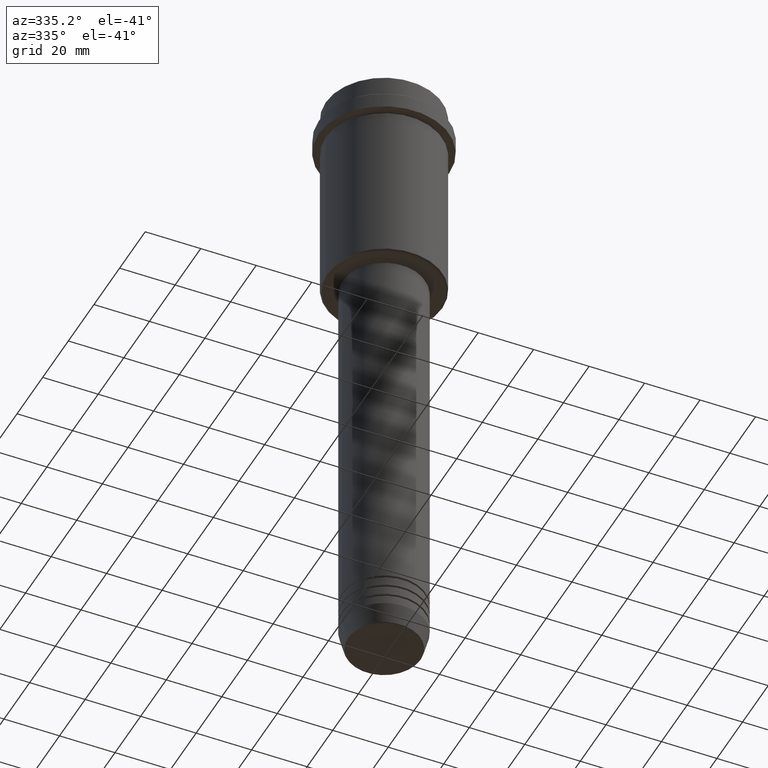
[diagram: clean part render]
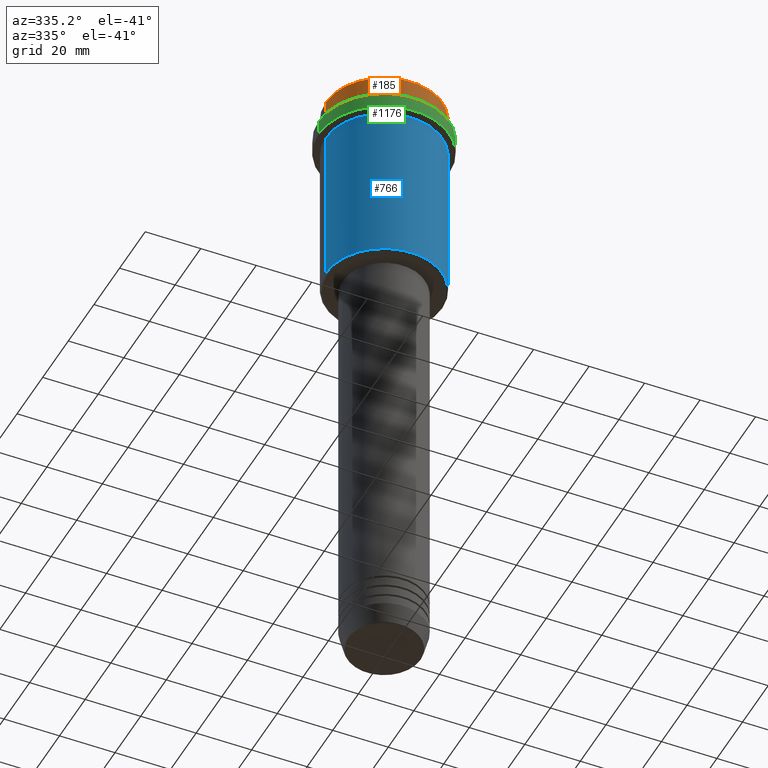
[diagram: same view with three faces highlighted in distinct colors, each labeled with its STEP entity id]
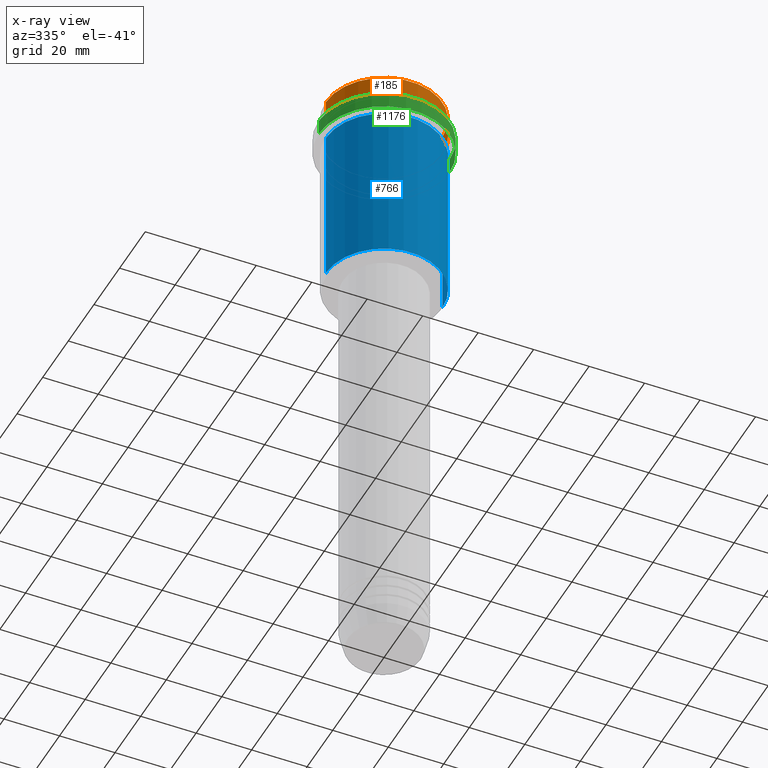
[diagram: x-ray of the same camera — body ghosted, the three highlighted faces saturated]
A machine part, auxiliary view with three faces highlighted in distinct colors.
The next image is the same camera in x-ray (body ghosted, the three faces saturated) — at least one of them is partly hidden behind the body in this view.
Their STEP definitions:

[orange] entity #185 — the highlighted cylindrical surface (partial cylindrical patch) has radius 21 mm, axis along (-0, -0, 1).
#11 = VERTEX_POINT ( 'NONE', #580 ) ;
#50 = EDGE_CURVE ( 'NONE', #192, #646, #1236, .T. ) ;
#73 = DIRECTION ( 'NONE',  ( -0.000000000000000000, -0.000000000000000000, 1.000000000000000000 ) ) ;
#132 = VERTEX_POINT ( 'NONE', #289 ) ;
#181 = VECTOR ( 'NONE', #522, 1000.000000000000000 ) ;
#185 = ADVANCED_FACE ( 'NONE', ( #587 ), #493, .T. ) ;
#192 = VERTEX_POINT ( 'NONE', #1021 ) ;
#289 = CARTESIAN_POINT ( 'NONE',  ( -20.99999999999999645, 2.571758278209441267E-15, -7.999999999999998224 ) ) ;
#295 = DIRECTION ( 'NONE',  ( 1.000000000000000000, 0.000000000000000000, 0.000000000000000000 ) ) ;
#316 = LINE ( 'NONE', #644, #181 ) ;
#337 = CARTESIAN_POINT ( 'NONE',  ( 20.99999999999999645, 0.000000000000000000, 0.000000000000000000 ) ) ;
#348 = EDGE_CURVE ( 'NONE', #132, #11, #316, .T. ) ;
#430 = CARTESIAN_POINT ( 'NONE',  ( 0.000000000000000000, 0.000000000000000000, -7.999999999999998224 ) ) ;
#461 = EDGE_LOOP ( 'NONE', ( #892, #718, #888, #1316 ) ) ;
#481 = AXIS2_PLACEMENT_3D ( 'NONE', #430, #73, #295 ) ;
#493 = CYLINDRICAL_SURFACE ( 'NONE', #1088, 20.99999999999999645 ) ;
#522 = DIRECTION ( 'NONE',  ( -0.000000000000000000, -0.000000000000000000, 1.000000000000000000 ) ) ;
#580 = CARTESIAN_POINT ( 'NONE',  ( -20.99999999999999645, 2.571758278209441267E-15, -0.5000000000000073275 ) ) ;
#587 = FACE_OUTER_BOUND ( 'NONE', #461, .T. ) ;
#595 = CARTESIAN_POINT ( 'NONE',  ( 20.99999999999999645, 0.000000000000000000, -0.5000000000000073275 ) ) ;
#644 = CARTESIAN_POINT ( 'NONE',  ( -20.99999999999999645, 2.571758278209441267E-15, 0.000000000000000000 ) ) ;
#646 = VERTEX_POINT ( 'NONE', #595 ) ;
#659 = CIRCLE ( 'NONE', #1396, 20.99999999999999645 ) ;
#714 = DIRECTION ( 'NONE',  ( -0.000000000000000000, -0.000000000000000000, 1.000000000000000000 ) ) ;
#718 = ORIENTED_EDGE ( 'NONE', *, *, #777, .T. ) ;
#724 = VECTOR ( 'NONE', #1214, 1000.000000000000000 ) ;
#777 = EDGE_CURVE ( 'NONE', #132, #192, #1070, .T. ) ;
#808 = CARTESIAN_POINT ( 'NONE',  ( 0.000000000000000000, 0.000000000000000000, 0.000000000000000000 ) ) ;
#888 = ORIENTED_EDGE ( 'NONE', *, *, #50, .T. ) ;
#892 = ORIENTED_EDGE ( 'NONE', *, *, #348, .F. ) ;
#964 = DIRECTION ( 'NONE',  ( 0.000000000000000000, 0.000000000000000000, -1.000000000000000000 ) ) ;
#1021 = CARTESIAN_POINT ( 'NONE',  ( 20.99999999999999645, 0.000000000000000000, -7.999999999999998224 ) ) ;
#1070 = CIRCLE ( 'NONE', #481, 20.99999999999999645 ) ;
#1077 = CARTESIAN_POINT ( 'NONE',  ( 0.000000000000000000, 0.000000000000000000, -0.5000000000000073275 ) ) ;
#1088 = AXIS2_PLACEMENT_3D ( 'NONE', #808, #714, #1144 ) ;
#1144 = DIRECTION ( 'NONE',  ( 1.000000000000000000, 0.000000000000000000, 0.000000000000000000 ) ) ;
#1194 = EDGE_CURVE ( 'NONE', #646, #11, #659, .T. ) ;
#1214 = DIRECTION ( 'NONE',  ( -0.000000000000000000, -0.000000000000000000, 1.000000000000000000 ) ) ;
#1236 = LINE ( 'NONE', #337, #724 ) ;
#1316 = ORIENTED_EDGE ( 'NONE', *, *, #1194, .T. ) ;
#1396 = AXIS2_PLACEMENT_3D ( 'NONE', #1077, #964, #1403 ) ;
#1403 = DIRECTION ( 'NONE',  ( 1.000000000000000000, 0.000000000000000000, 0.000000000000000000 ) ) ;

[blue] entity #766 — the highlighted cylindrical surface (partial cylindrical patch) has radius 21 mm, axis along (-0, -0, 1).
#7 = CARTESIAN_POINT ( 'NONE',  ( 0.000000000000000000, 0.000000000000000000, -74.49999999999998579 ) ) ;
#31 = CARTESIAN_POINT ( 'NONE',  ( 20.99999999999999645, 0.000000000000000000, -74.49999999999998579 ) ) ;
#65 = CIRCLE ( 'NONE', #66, 20.99999999999999645 ) ;
#66 = AXIS2_PLACEMENT_3D ( 'NONE', #7, #105, #869 ) ;
#86 = VECTOR ( 'NONE', #404, 1000.000000000000000 ) ;
#99 = FACE_OUTER_BOUND ( 'NONE', #437, .T. ) ;
#105 = DIRECTION ( 'NONE',  ( -0.000000000000000000, -0.000000000000000000, 1.000000000000000000 ) ) ;
#140 = ORIENTED_EDGE ( 'NONE', *, *, #1044, .F. ) ;
#218 = EDGE_CURVE ( 'NONE', #473, #742, #946, .T. ) ;
#261 = ORIENTED_EDGE ( 'NONE', *, *, #962, .T. ) ;
#304 = LINE ( 'NONE', #1381, #1416 ) ;
#404 = DIRECTION ( 'NONE',  ( -0.000000000000000000, -0.000000000000000000, 1.000000000000000000 ) ) ;
#419 = CARTESIAN_POINT ( 'NONE',  ( -20.99999999999999645, 2.571758278209441267E-15, -16.00000000000000355 ) ) ;
#437 = EDGE_LOOP ( 'NONE', ( #1244, #261, #1030, #140 ) ) ;
#446 = CARTESIAN_POINT ( 'NONE',  ( -20.99999999999999645, 2.571758278209441267E-15, -74.49999999999998579 ) ) ;
#473 = VERTEX_POINT ( 'NONE', #446 ) ;
#500 = CARTESIAN_POINT ( 'NONE',  ( -20.99999999999999645, 2.571758278209441267E-15, 0.000000000000000000 ) ) ;
#571 = CIRCLE ( 'NONE', #1368, 20.99999999999999645 ) ;
#615 = CARTESIAN_POINT ( 'NONE',  ( 20.99999999999999645, 0.000000000000000000, -16.00000000000000355 ) ) ;
#670 = VERTEX_POINT ( 'NONE', #615 ) ;
#742 = VERTEX_POINT ( 'NONE', #419 ) ;
#744 = EDGE_CURVE ( 'NONE', #1054, #670, #304, .T. ) ;
#766 = ADVANCED_FACE ( 'NONE', ( #99 ), #1065, .T. ) ;
#869 = DIRECTION ( 'NONE',  ( -1.000000000000000000, 0.000000000000000000, 0.000000000000000000 ) ) ;
#883 = AXIS2_PLACEMENT_3D ( 'NONE', #1185, #970, #945 ) ;
#925 = DIRECTION ( 'NONE',  ( 1.000000000000000000, 0.000000000000000000, 0.000000000000000000 ) ) ;
#935 = DIRECTION ( 'NONE',  ( -0.000000000000000000, -0.000000000000000000, 1.000000000000000000 ) ) ;
#945 = DIRECTION ( 'NONE',  ( 1.000000000000000000, 0.000000000000000000, 0.000000000000000000 ) ) ;
#946 = LINE ( 'NONE', #500, #86 ) ;
#962 = EDGE_CURVE ( 'NONE', #473, #1054, #65, .T. ) ;
#965 = DIRECTION ( 'NONE',  ( -0.000000000000000000, -0.000000000000000000, 1.000000000000000000 ) ) ;
#970 = DIRECTION ( 'NONE',  ( -0.000000000000000000, -0.000000000000000000, 1.000000000000000000 ) ) ;
#1030 = ORIENTED_EDGE ( 'NONE', *, *, #744, .T. ) ;
#1044 = EDGE_CURVE ( 'NONE', #742, #670, #571, .T. ) ;
#1054 = VERTEX_POINT ( 'NONE', #31 ) ;
#1065 = CYLINDRICAL_SURFACE ( 'NONE', #883, 20.99999999999999645 ) ;
#1119 = CARTESIAN_POINT ( 'NONE',  ( 0.000000000000000000, 0.000000000000000000, -16.00000000000000355 ) ) ;
#1185 = CARTESIAN_POINT ( 'NONE',  ( 0.000000000000000000, 0.000000000000000000, 0.000000000000000000 ) ) ;
#1244 = ORIENTED_EDGE ( 'NONE', *, *, #218, .F. ) ;
#1368 = AXIS2_PLACEMENT_3D ( 'NONE', #1119, #935, #925 ) ;
#1381 = CARTESIAN_POINT ( 'NONE',  ( 20.99999999999999645, 0.000000000000000000, 0.000000000000000000 ) ) ;
#1416 = VECTOR ( 'NONE', #965, 1000.000000000000000 ) ;

[green] entity #1176 — the highlighted cylindrical surface (partial cylindrical patch) has radius 23.5 mm, axis along (-0, -0, 1).
#147 = EDGE_CURVE ( 'NONE', #805, #415, #881, .T. ) ;
#150 = DIRECTION ( 'NONE',  ( -0.000000000000000000, -0.000000000000000000, 1.000000000000000000 ) ) ;
#151 = CARTESIAN_POINT ( 'NONE',  ( 0.000000000000000000, 0.000000000000000000, -15.00000000000000178 ) ) ;
#156 = CARTESIAN_POINT ( 'NONE',  ( 23.50000000000000000, 0.000000000000000000, -9.500000000000001776 ) ) ;
#200 = CYLINDRICAL_SURFACE ( 'NONE', #275, 23.50000000000000000 ) ;
#235 = EDGE_CURVE ( 'NONE', #1103, #294, #635, .T. ) ;
#236 = LINE ( 'NONE', #1205, #339 ) ;
#275 = AXIS2_PLACEMENT_3D ( 'NONE', #400, #308, #630 ) ;
#294 = VERTEX_POINT ( 'NONE', #1066 ) ;
#308 = DIRECTION ( 'NONE',  ( -0.000000000000000000, -0.000000000000000000, 1.000000000000000000 ) ) ;
#331 = ORIENTED_EDGE ( 'NONE', *, *, #147, .T. ) ;
#339 = VECTOR ( 'NONE', #1319, 1000.000000000000000 ) ;
#356 = CARTESIAN_POINT ( 'NONE',  ( 23.50000000000000355, 0.000000000000000000, -15.00000000000000178 ) ) ;
#380 = CARTESIAN_POINT ( 'NONE',  ( 0.000000000000000000, 0.000000000000000000, -9.500000000000001776 ) ) ;
#400 = CARTESIAN_POINT ( 'NONE',  ( 0.000000000000000000, 0.000000000000000000, 0.000000000000000000 ) ) ;
#415 = VERTEX_POINT ( 'NONE', #356 ) ;
#431 = AXIS2_PLACEMENT_3D ( 'NONE', #380, #698, #1137 ) ;
#506 = LINE ( 'NONE', #1341, #771 ) ;
#510 = ORIENTED_EDGE ( 'NONE', *, *, #594, .T. ) ;
#563 = ORIENTED_EDGE ( 'NONE', *, *, #235, .T. ) ;
#594 = EDGE_CURVE ( 'NONE', #415, #1103, #506, .T. ) ;
#630 = DIRECTION ( 'NONE',  ( 1.000000000000000000, 0.000000000000000000, 0.000000000000000000 ) ) ;
#635 = CIRCLE ( 'NONE', #431, 23.50000000000000000 ) ;
#649 = CARTESIAN_POINT ( 'NONE',  ( -23.50000000000000711, 2.877919977996281109E-15, -15.00000000000000178 ) ) ;
#698 = DIRECTION ( 'NONE',  ( 0.000000000000000000, 0.000000000000000000, -1.000000000000000000 ) ) ;
#720 = DIRECTION ( 'NONE',  ( -0.000000000000000000, -0.000000000000000000, 1.000000000000000000 ) ) ;
#738 = FACE_OUTER_BOUND ( 'NONE', #940, .T. ) ;
#771 = VECTOR ( 'NONE', #150, 1000.000000000000000 ) ;
#805 = VERTEX_POINT ( 'NONE', #649 ) ;
#881 = CIRCLE ( 'NONE', #1315, 23.50000000000000355 ) ;
#940 = EDGE_LOOP ( 'NONE', ( #1190, #331, #510, #563 ) ) ;
#951 = EDGE_CURVE ( 'NONE', #805, #294, #236, .T. ) ;
#1035 = DIRECTION ( 'NONE',  ( 1.000000000000000000, 0.000000000000000000, 0.000000000000000000 ) ) ;
#1066 = CARTESIAN_POINT ( 'NONE',  ( -23.50000000000000000, 2.877919977996280320E-15, -9.500000000000001776 ) ) ;
#1103 = VERTEX_POINT ( 'NONE', #156 ) ;
#1137 = DIRECTION ( 'NONE',  ( 1.000000000000000000, 0.000000000000000000, 0.000000000000000000 ) ) ;
#1176 = ADVANCED_FACE ( 'NONE', ( #738 ), #200, .T. ) ;
#1190 = ORIENTED_EDGE ( 'NONE', *, *, #951, .F. ) ;
#1205 = CARTESIAN_POINT ( 'NONE',  ( -23.50000000000000000, 2.877919977996280320E-15, 0.000000000000000000 ) ) ;
#1315 = AXIS2_PLACEMENT_3D ( 'NONE', #151, #720, #1035 ) ;
#1319 = DIRECTION ( 'NONE',  ( -0.000000000000000000, -0.000000000000000000, 1.000000000000000000 ) ) ;
#1341 = CARTESIAN_POINT ( 'NONE',  ( 23.50000000000000000, 0.000000000000000000, 0.000000000000000000 ) ) ;